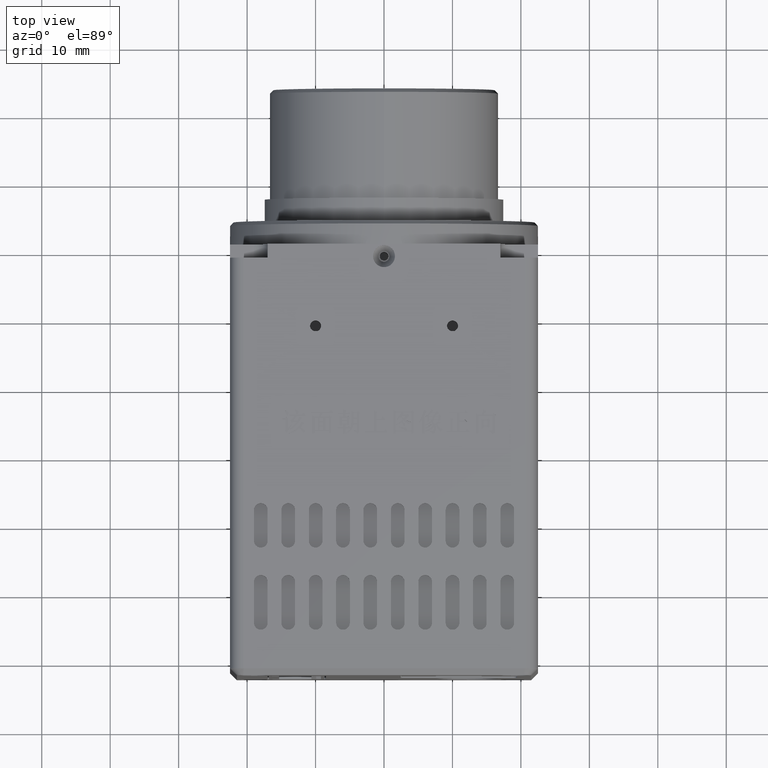
[diagram: clean part render]
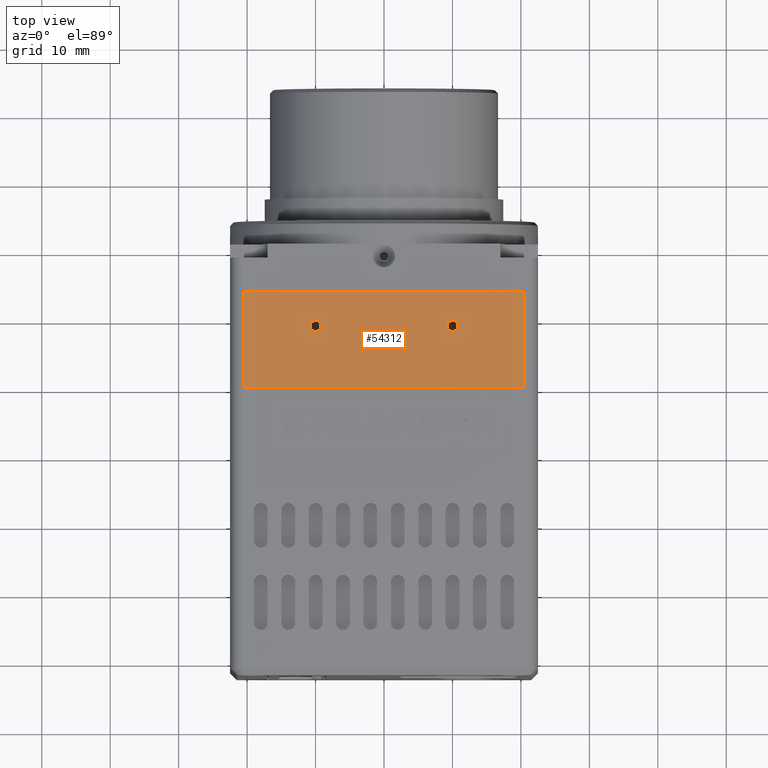
[diagram: same view with one face highlighted and labeled with its STEP entity id]
A machine part, top view. The second image highlights one B-rep face of the part: STEP entity #54312.
In plain terms, the highlighted planar face has unit normal (0, 0, 1).
Its self-contained STEP definition (entity closure, byte-faithful):
#2359 = EDGE_LOOP ( 'NONE', ( #4598 ) ) ;
#4483 = EDGE_CURVE ( 'NONE', #47182, #47182, #25996, .T. ) ;
#4598 = ORIENTED_EDGE ( 'NONE', *, *, #67394, .T. ) ;
#4696 = VERTEX_POINT ( 'NONE', #66902 ) ;
#4932 = CARTESIAN_POINT ( 'NONE',  ( -2.084271783786999829E-06, 13.90020000000000167, 22.50000452543680396 ) ) ;
#6635 = ORIENTED_EDGE ( 'NONE', *, *, #28970, .T. ) ;
#8655 = VECTOR ( 'NONE', #59602, 1000.000000000000000 ) ;
#10078 = EDGE_CURVE ( 'NONE', #92076, #69047, #43883, .T. ) ;
#11575 = ORIENTED_EDGE ( 'NONE', *, *, #11775, .T. ) ;
#11775 = EDGE_CURVE ( 'NONE', #52228, #69047, #54970, .T. ) ;
#13274 = DIRECTION ( 'NONE',  ( -0.000000000000000000, 1.000000000000000000, -0.000000000000000000 ) ) ;
#13609 = DIRECTION ( 'NONE',  ( 0.000000000000000000, 0.000000000000000000, 1.000000000000000000 ) ) ;
#22080 = DIRECTION ( 'NONE',  ( -0.000000000000000000, -0.000000000000000000, -1.000000000000000000 ) ) ;
#25634 = CARTESIAN_POINT ( 'NONE',  ( 20.49999791572821906, 13.90019999999999989, 22.50000452543680396 ) ) ;
#25996 = CIRCLE ( 'NONE', #27532, 0.8000000000000003775 ) ;
#27532 = AXIS2_PLACEMENT_3D ( 'NONE', #32403, #78625, #77253 ) ;
#28542 = PLANE ( 'NONE',  #69847 ) ;
#28970 = EDGE_CURVE ( 'NONE', #4696, #52228, #29123, .T. ) ;
#29001 = FACE_BOUND ( 'NONE', #2359, .T. ) ;
#29123 = LINE ( 'NONE', #78700, #54637 ) ;
#29465 = FACE_BOUND ( 'NONE', #76762, .T. ) ;
#30609 = LINE ( 'NONE', #59138, #8655 ) ;
#31986 = ORIENTED_EDGE ( 'NONE', *, *, #4483, .T. ) ;
#32403 = CARTESIAN_POINT ( 'NONE',  ( -10.00000208427178272, 8.900199999999999889, 22.50000452543680396 ) ) ;
#32745 = VECTOR ( 'NONE', #85505, 1000.000000000000000 ) ;
#33446 = DIRECTION ( 'NONE',  ( -1.000000000000000000, -0.000000000000000000, -0.000000000000000000 ) ) ;
#33920 = EDGE_CURVE ( 'NONE', #4696, #92076, #30609, .T. ) ;
#36481 = DIRECTION ( 'NONE',  ( -1.000000000000000000, -0.000000000000000000, 0.000000000000000000 ) ) ;
#36945 = CARTESIAN_POINT ( 'NONE',  ( -20.50000208427178450, 13.90019999999999989, 22.50000452543680396 ) ) ;
#42096 = VERTEX_POINT ( 'NONE', #71080 ) ;
#42516 = CARTESIAN_POINT ( 'NONE',  ( -20.50000208427178450, -9.832199999999996720, 22.50000452543680396 ) ) ;
#43883 = LINE ( 'NONE', #42516, #32745 ) ;
#44065 = DIRECTION ( 'NONE',  ( -1.000000000000000000, 0.000000000000000000, 0.000000000000000000 ) ) ;
#45440 = AXIS2_PLACEMENT_3D ( 'NONE', #63266, #22080, #44065 ) ;
#45802 = CARTESIAN_POINT ( 'NONE',  ( -9.200002084271782010, 8.900199999999999889, 22.50000452543680396 ) ) ;
#47182 = VERTEX_POINT ( 'NONE', #45802 ) ;
#49614 = CARTESIAN_POINT ( 'NONE',  ( 20.99999791572821906, 10.90019999999999989, 22.50000452543680396 ) ) ;
#52112 = VECTOR ( 'NONE', #33446, 1000.000000000000000 ) ;
#52228 = VERTEX_POINT ( 'NONE', #25634 ) ;
#54312 = ADVANCED_FACE ( 'NONE', ( #29001, #29465, #70653 ), #28542, .T. ) ;
#54637 = VECTOR ( 'NONE', #13274, 1000.000000000000000 ) ;
#54970 = LINE ( 'NONE', #4932, #52112 ) ;
#59138 = CARTESIAN_POINT ( 'NONE',  ( -2.084271783786999829E-06, -0.09979999999999884797, 22.50000452543680396 ) ) ;
#59602 = DIRECTION ( 'NONE',  ( -1.000000000000000000, -0.000000000000000000, -0.000000000000000000 ) ) ;
#63266 = CARTESIAN_POINT ( 'NONE',  ( 9.999997915728217279, 8.900199999999999889, 22.50000452543680396 ) ) ;
#66902 = CARTESIAN_POINT ( 'NONE',  ( 20.49999791572821906, -0.09979999999999884797, 22.50000452543680396 ) ) ;
#67180 = ORIENTED_EDGE ( 'NONE', *, *, #33920, .F. ) ;
#67394 = EDGE_CURVE ( 'NONE', #42096, #42096, #79779, .T. ) ;
#68086 = CARTESIAN_POINT ( 'NONE',  ( -20.50000208427178450, -0.09979999999999884797, 22.50000452543680396 ) ) ;
#69047 = VERTEX_POINT ( 'NONE', #36945 ) ;
#69847 = AXIS2_PLACEMENT_3D ( 'NONE', #49614, #13609, #36481 ) ;
#70653 = FACE_OUTER_BOUND ( 'NONE', #84432, .T. ) ;
#71080 = CARTESIAN_POINT ( 'NONE',  ( 9.199997915728216569, 8.900199999999999889, 22.50000452543680396 ) ) ;
#76762 = EDGE_LOOP ( 'NONE', ( #31986 ) ) ;
#77253 = DIRECTION ( 'NONE',  ( 1.000000000000000000, 0.000000000000000000, 0.000000000000000000 ) ) ;
#78625 = DIRECTION ( 'NONE',  ( 0.000000000000000000, 0.000000000000000000, -1.000000000000000000 ) ) ;
#78700 = CARTESIAN_POINT ( 'NONE',  ( 20.49999791572821906, 10.90019999999999989, 22.50000452543680396 ) ) ;
#78871 = ORIENTED_EDGE ( 'NONE', *, *, #10078, .F. ) ;
#79779 = CIRCLE ( 'NONE', #45440, 0.8000000000000003775 ) ;
#84432 = EDGE_LOOP ( 'NONE', ( #67180, #6635, #11575, #78871 ) ) ;
#85505 = DIRECTION ( 'NONE',  ( 0.000000000000000000, 1.000000000000000000, 0.000000000000000000 ) ) ;
#92076 = VERTEX_POINT ( 'NONE', #68086 ) ;